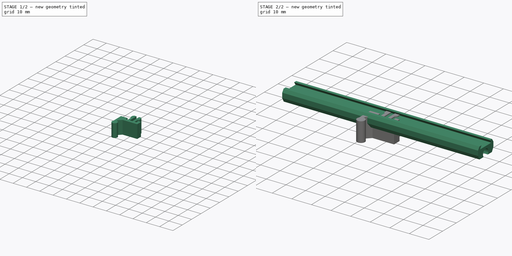
[diagram: build sequence overview — one tinted view per stage of 2, left to right]
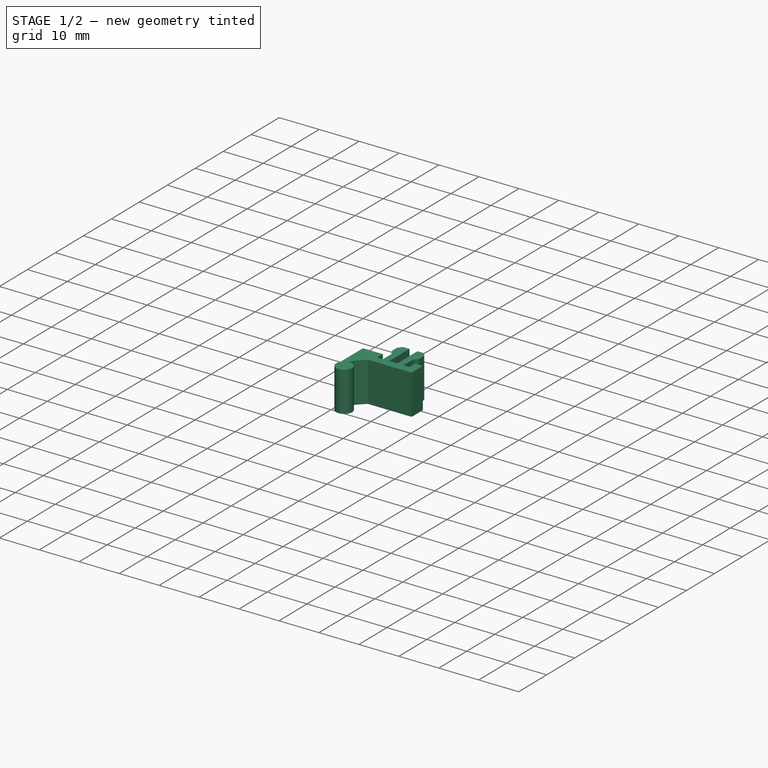
[diagram: stage 1 of 2 — iso view after this stage's code; geometry added in this stage tinted green]
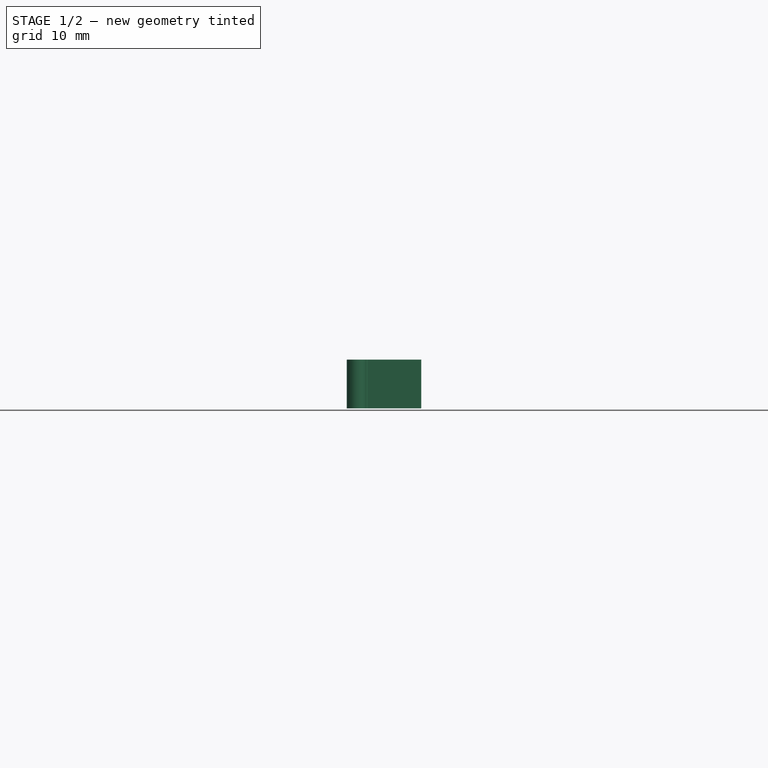
[diagram: stage 1 of 2 — front view after this stage's code; geometry added in this stage tinted green]
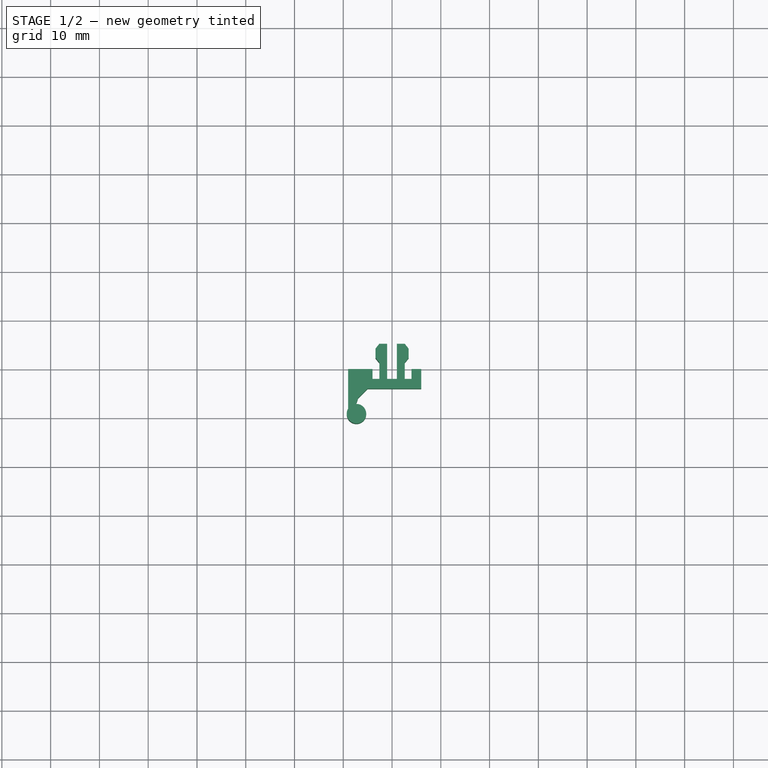
[diagram: stage 1 of 2 — top view after this stage's code; geometry added in this stage tinted green]
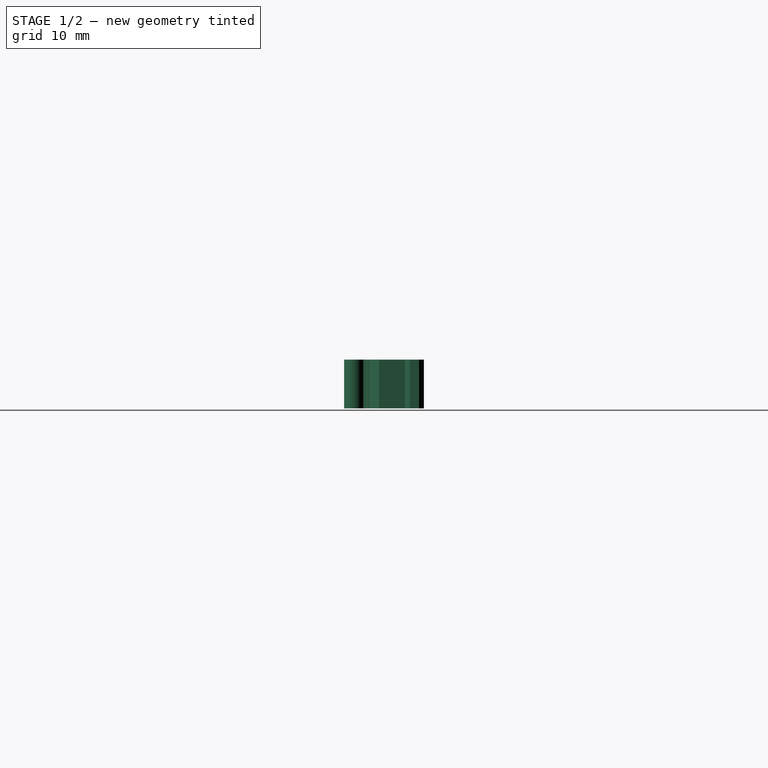
[diagram: stage 1 of 2 — right view after this stage's code; geometry added in this stage tinted green]
FCSTD DOCUMENT  (FreeCAD 0.20R30820 (Git))
Label: 8mm
License: Creative Commons Attribution
LicenseURL: http://creativecommons.org/licenses/by/4.0/
objects: Sketcher::SketchObject×2, PartDesign::Pad×2, PartDesign::Body×2, App::Part×1
note: 10 computed .brp shape members not serialized (recipe doc carries the construction recipe); baked Part::Feature solids carry a one-line shape summary decoded from their .brp

FEATURE [PartDesign::Body] Body  label="Strip"
  AutoGroupSolids = false
  ExportMode = 0
  Group = -> [Sketch,Pad]
  Origin = -> Origin001
  Tip = -> Pad
  TreeRank = 14
  _ExportChildren = -> [Pad]
  _GroupVersion = 1
FEATURE [Sketcher::SketchObject] Sketch001
  FullyConstrained = true
  MapMode = 5
  Support = -> [XY_Plane001]
  TreeRank = 11
  sketch-geometry (27):
    g0: LineSegment StartX=-9 StartY=0 StartZ=0 EndX=-9 EndY=-8.09939 EndZ=0
    g1: LineSegment StartX=-7.38306 StartY=-7.15468 StartZ=0 EndX=-7 EndY=-6.10222 EndZ=0
    g2: LineSegment StartX=-7 StartY=-6.10222 StartZ=0 EndX=-7 EndY=-6.00222 EndZ=0
    g3: LineSegment StartX=-7 StartY=-6.00222 StartZ=0 EndX=-5 EndY=-4 EndZ=0
    g4: LineSegment StartX=-5 StartY=-4 StartZ=0 EndX=6 EndY=-4 EndZ=0
    g5: LineSegment StartX=6 StartY=-4 StartZ=0 EndX=6 EndY=0 EndZ=0
    g6: LineSegment StartX=6 StartY=0 StartZ=0 EndX=4 EndY=0 EndZ=0
    g7: LineSegment StartX=4 StartY=0 StartZ=0 EndX=4 EndY=-2 EndZ=0
    g8: LineSegment StartX=4 StartY=-2 StartZ=0 EndX=2.6 EndY=-2 EndZ=0
    g9: LineSegment StartX=2.6 StartY=-2 StartZ=0 EndX=2.6 EndY=1.3 EndZ=0
    g10: LineSegment StartX=2.6 StartY=1.3 StartZ=0 EndX=3.4 EndY=2.2992 EndZ=0
    g11: LineSegment StartX=3.4 StartY=2.2992 StartZ=0 EndX=3.4 EndY=4.1992 EndZ=0
    g12: LineSegment StartX=3.4 StartY=4.1992 StartZ=0 EndX=2.6 EndY=5.2 EndZ=0
    g13: LineSegment StartX=2.6 StartY=5.2 StartZ=0 EndX=1 EndY=5.2 EndZ=0
    g14: LineSegment StartX=1 StartY=5.2 StartZ=0 EndX=1 EndY=-2 EndZ=0
    g15: LineSegment StartX=1 StartY=-2 StartZ=0 EndX=-1 EndY=-2 EndZ=0
    g16: LineSegment StartX=-1 StartY=-2 StartZ=0 EndX=-1 EndY=5.2 EndZ=0
    g17: LineSegment StartX=-1 StartY=5.2 StartZ=0 EndX=-2.6 EndY=5.2 EndZ=0
    g18: LineSegment StartX=-2.6 StartY=5.2 StartZ=0 EndX=-3.4 EndY=4.1992 EndZ=0
    g19: LineSegment StartX=-3.4 StartY=4.1992 StartZ=0 EndX=-3.4 EndY=2.2992 EndZ=0
    g20: LineSegment StartX=-3.4 StartY=2.2992 StartZ=0 EndX=-2.6 EndY=1.3 EndZ=0
    g21: LineSegment StartX=-2.6 StartY=1.3 StartZ=0 EndX=-2.6 EndY=-2 EndZ=0
    g22: LineSegment StartX=-2.6 StartY=-2 StartZ=0 EndX=-4 EndY=-2 EndZ=0
    g23: LineSegment StartX=-4 StartY=-2 StartZ=0 EndX=-4 EndY=0 EndZ=0
    g24: LineSegment StartX=-4 StartY=0 StartZ=0 EndX=-9 EndY=0 EndZ=0
    g25: ArcOfCircle CenterX=-7.3 CenterY=-9.15295 CenterZ=0 NormalX=0 NormalY=0 NormalZ=1 AngleXU=0 Radius=2 StartAngle=2.58678 EndAngle=7.89552
    g26: GeomPoint [constr] X=-9 Y=-6.00222 Z=0
  constraints (78):
    c: PointOnObject(g0,g-1)
    c: Vertical(g0)
    c: Coincident(g1,g2)
    c: Vertical(g2)
    c: Coincident(g2,g3)
    c: Coincident(g3,g4)
    c: Horizontal(g4)
    c: Coincident(g4,g5)
    c: PointOnObject(g5,g-1)
    c: Vertical(g5)
    c: Coincident(g5,g6)
    c: PointOnObject(g6,g-1)
    c: Coincident(g6,g7)
    c: Vertical(g7)
    c: Coincident(g7,g8)
    c: Horizontal(g8)
    c: Coincident(g8,g9)
    c: Vertical(g9)
    c: Coincident(g9,g10)
    c: Coincident(g10,g11)
    c: Vertical(g11)
    c: Coincident(g11,g12)
    c: Coincident(g12,g13)
    c: Horizontal(g13)
    c: Coincident(g13,g14)
    c: Vertical(g14)
    c: Coincident(g14,g15)
    c: Horizontal(g15)
    c: Coincident(g15,g16)
    c: Vertical(g16)
    c: Coincident(g16,g17)
    c: Horizontal(g17)
    c: Coincident(g17,g18)
    c: Coincident(g18,g19)
    c: Vertical(g19)
    c: Coincident(g19,g20)
    c: Coincident(g20,g21)
    c: Vertical(g21)
    c: Coincident(g21,g22)
    c: Horizontal(g22)
    c: Coincident(g22,g23)
    c: PointOnObject(g23,g-1)
    c: Coincident(g23,g24)
    c: Coincident(g24,g0)
    c: Vertical(g23)
    c: Equal(g11,g19)
    c: Equal(g17,g13)
    c: DistanceX(g17,g17) = 1.6
    c: Symmetric(g16,g13,g-2)
    c: Symmetric(g18,g11,g-2)
    c: DistanceX(g16,g13) = 2
    c: Symmetric(g20,g9,g-2)
    c: DistanceY(g17) = 5.2
    c: DistanceY(g20) = 1.3
    c: Vertical(g17,g20)
    c: Distance(g20) = 1.28
    c: DistanceX(g18) = -3.4
    c: DistanceY(g19,g19) = 1.9
    c: DistanceY(g21) = -2
    c: Horizontal(g21,g15)
    c: Horizontal(g15,g8)
    c: DistanceX(g22,g22) = 1.4
    c: Equal(g22,g8)
    c: DistanceX(g6,g6) = 2
    c: DistanceY(g5,g5) = 4
    c: DistanceX(g24,g24) = 5
    c: DistanceX(g4,g4) = 11
    c: DistanceX(g2) = -7
    c: Angle(g2,g1) = 2.79253
    c: Radius(g25) = 2
    c: DistanceX(g25) = -7.3
    c: Coincident(g0,g25)
    c: Coincident(g1,g25)
    c: Distance(g3) = 2.83
    c: PointOnObject(g26,g0)
    c: Horizontal(g2,g26)
    c: Distance(g1) = 1.12
    c: DistanceY(g2,g2) = 0.1
FEATURE [PartDesign::Pad] Pad001
  AddSubType = 0
  AlongSketchNormal = false
  CheckUpToFaceLimits = true
  ClaimChildren = false
  Direction = (0,0,1)
  Fit = 0
  FitJoin = 0
  InnerFit = 0
  InnerFitJoin = 0
  InnerTaperAngle = 0
  InnerTaperAngleRev = 0
  Length = 10
  Length2 = 100
  Linearize = true
  Midplane = true
  NewSolid = false
  Profile = -> Sketch001
  Suppress = false
  TreeRank = 13
  Type = 0
  _ProfileBasedVersion = 1
FEATURE [PartDesign::Body] Body001  label="Clip"
  AutoGroupSolids = false
  ExportMode = 0
  Group = -> [Sketch001,Pad001]
  Origin = -> Origin002
  Placement = pos=(1.6e-15,-7.3,-7.8) rot=(0.57735,-0.57735,0.57735;4.18879rad)
  Tip = -> Pad001
  TreeRank = 18
  _ExportChildren = -> [Pad001]
  _GroupVersion = 1
FEATURE [App::Part] Part
  ExportMode = 1
  Group = -> [Body,Body001]
  Origin = -> Origin
  TreeRank = 17
  _ExportChildren = -> [Body,Body001]
  _GroupVersion = 1
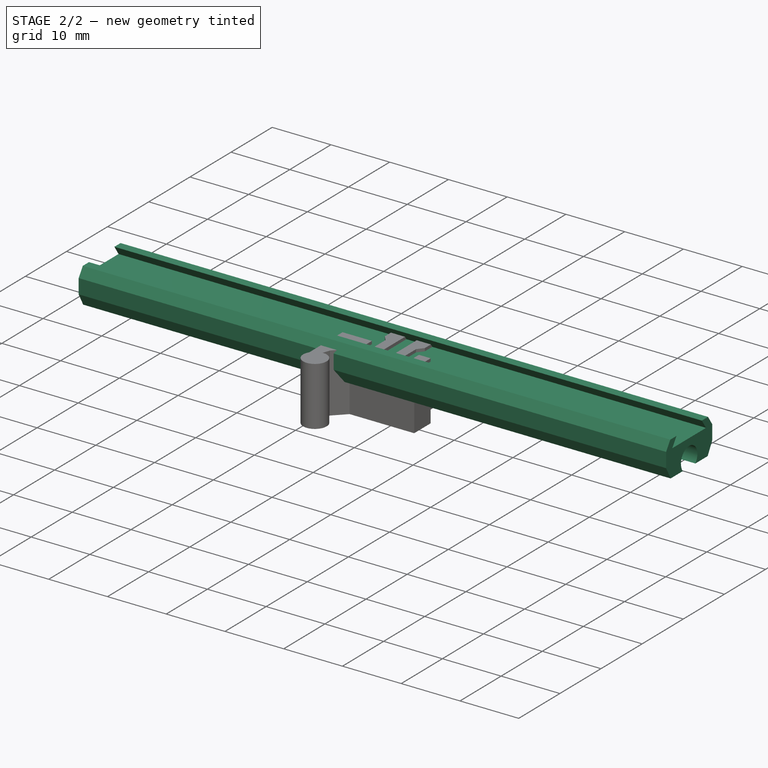
[diagram: stage 2 of 2 — iso view after this stage's code; geometry added in this stage tinted green]
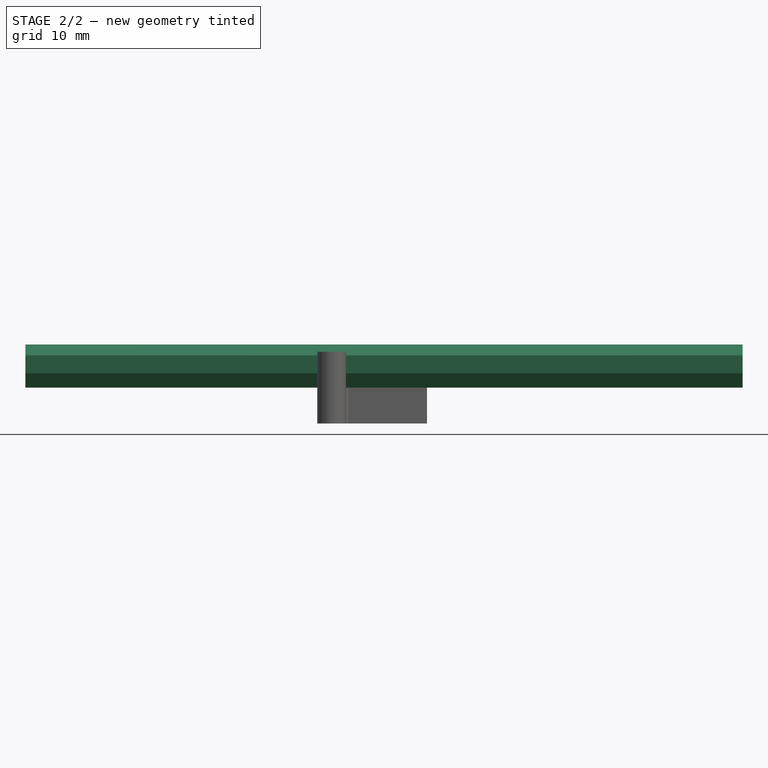
[diagram: stage 2 of 2 — front view after this stage's code; geometry added in this stage tinted green]
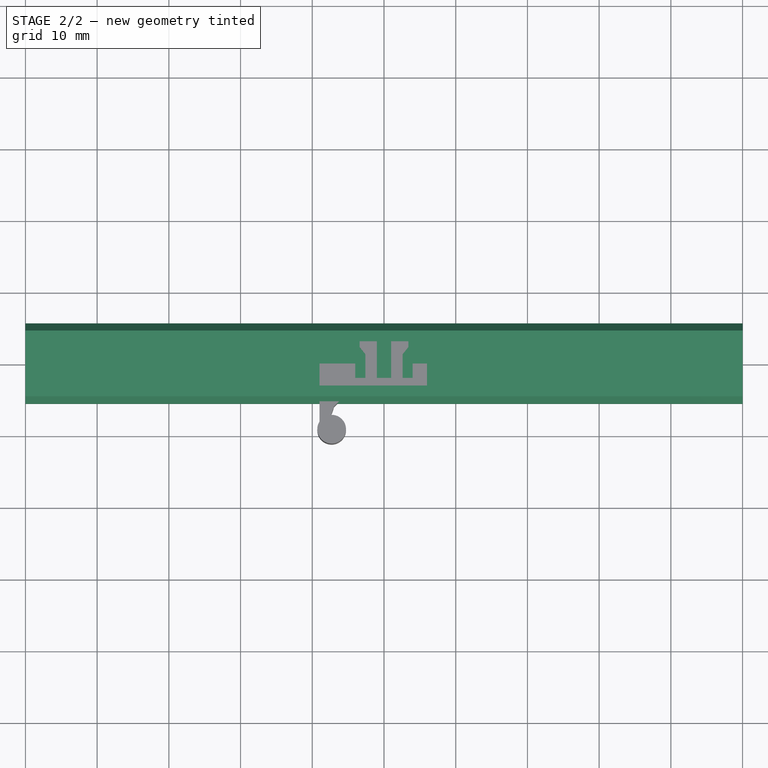
[diagram: stage 2 of 2 — top view after this stage's code; geometry added in this stage tinted green]
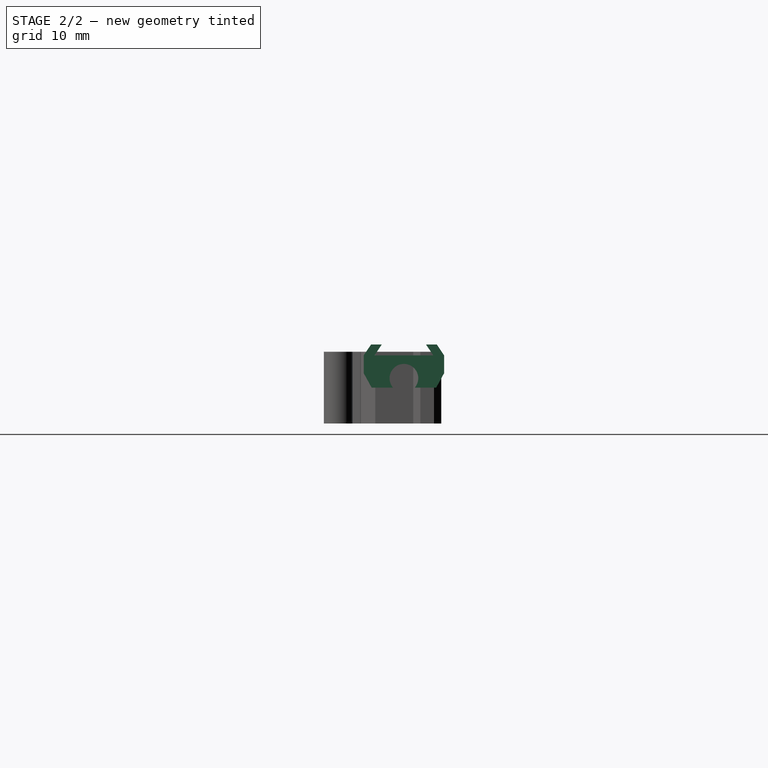
[diagram: stage 2 of 2 — right view after this stage's code; geometry added in this stage tinted green]
FEATURE [Sketcher::SketchObject] Sketch
  FullyConstrained = true
  MapMode = 5
  Placement = pos=(0,0,0) rot=(0.57735,0.57735,0.57735;2.0944rad)
  Support = -> [YZ_Plane]
  TreeRank = 15
  sketch-geometry (14):
    g0: ArcOfCircle CenterX=0 CenterY=1.3 CenterZ=0 NormalX=0 NormalY=0 NormalZ=1 AngleXU=0 Radius=2 StartAngle=5.5756 EndAngle=10.1324
    g1: LineSegment StartX=-4.1 StartY=4.5 StartZ=0 EndX=4.1 EndY=4.5 EndZ=0
    g2: LineSegment StartX=-4.1 StartY=4.5 StartZ=0 EndX=-3.08824 EndY=6 EndZ=0
    g3: LineSegment StartX=4.1 StartY=4.5 StartZ=0 EndX=3.08824 EndY=6 EndZ=0
    g4: LineSegment StartX=-3.08824 StartY=6 StartZ=0 EndX=-4.58824 EndY=6 EndZ=0
    g5: LineSegment StartX=-4.58824 StartY=6 StartZ=0 EndX=-5.6 EndY=4.5 EndZ=0
    g6: LineSegment StartX=-5.6 StartY=4.5 StartZ=0 EndX=-5.6 EndY=2 EndZ=0
    g7: LineSegment StartX=-5.6 StartY=2 StartZ=0 EndX=-4.5 EndY=0 EndZ=0
    g8: LineSegment StartX=-4.5 StartY=0 StartZ=0 EndX=-1.51987 EndY=3.09e-14 EndZ=0
    g9: LineSegment StartX=3.08824 StartY=6 StartZ=0 EndX=4.58824 EndY=6 EndZ=0
    g10: LineSegment StartX=4.58824 StartY=6 StartZ=0 EndX=5.6 EndY=4.5 EndZ=0
    g11: LineSegment StartX=5.6 StartY=4.5 StartZ=0 EndX=5.6 EndY=2 EndZ=0
    g12: LineSegment StartX=5.6 StartY=2 StartZ=0 EndX=4.5 EndY=0 EndZ=0
    g13: LineSegment StartX=4.5 StartY=0 StartZ=0 EndX=1.51987 EndY=1.78e-14 EndZ=0
  constraints (41):
    c: PointOnObject(g0,g-2)
    c: Radius(g0) = 2
    c: DistanceY(g0) = 1.3
    c: Symmetric(g1,g1,g-2)
    c: DistanceX(g1,g1) = 8.2
    c: Coincident(g2,g1)
    c: Coincident(g3,g1)
    c: Coincident(g2,g4)
    c: Angle(g1,g2) = 0.977384
    c: Angle(g3,g1) = 0.977384
    c: DistanceY(g1) = 4.5
    c: DistanceY(g1,g2) = 1.5
    c: Equal(g3,g2)
    c: Horizontal(g4)
    c: DistanceX(g4,g4) = 1.5
    c: Coincident(g4,g5)
    c: Coincident(g5,g6)
    c: Vertical(g6)
    c: Coincident(g6,g7)
    c: PointOnObject(g7,g-1)
    c: Coincident(g7,g8)
    c: Equal(g5,g2)
    c: Horizontal(g5,g1)
    c: DistanceY(g6,g6) = 2.5
    c: Coincident(g3,g9)
    c: Horizontal(g9)
    c: Coincident(g9,g10)
    c: Coincident(g10,g11)
    c: Coincident(g11,g12)
    c: Coincident(g12,g13)
    c: Vertical(g11)
    c: Parallel(g3,g10)
    c: Equal(g9,g4)
    c: Equal(g11,g6)
    c: Symmetric(g7,g12,g-2)
    c: Coincident(g0,g8)
    c: Coincident(g0,g13)
    c: DistanceX(g7,g-1) = 4.5
    c: Equal(g8,g13)
    c: PointOnObject(g0,g-1)
    c: Equal(g5,g10)
FEATURE [PartDesign::Pad] Pad
  AddSubType = 0
  AlongSketchNormal = false
  CheckUpToFaceLimits = true
  ClaimChildren = false
  Direction = (1,-2e-16,3e-16)
  Fit = 0
  FitJoin = 0
  InnerFit = 0
  InnerFitJoin = 0
  InnerTaperAngle = 0
  InnerTaperAngleRev = 0
  Length = 100
  Length2 = 100
  Linearize = true
  Midplane = true
  NewSolid = false
  Placement = pos=(0,0,0) rot=(0.57735,0.57735,0.57735;2.0944rad)
  Profile = -> Sketch
  Suppress = false
  TreeRank = 16
  Type = 0
  _ProfileBasedVersion = 1
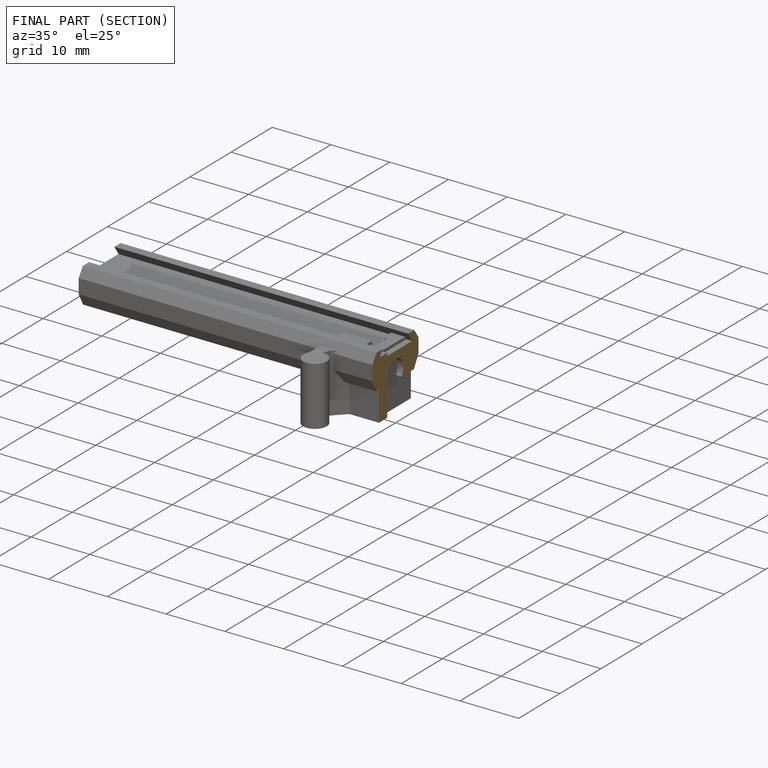
[diagram: finished part — half-section view (interior)]
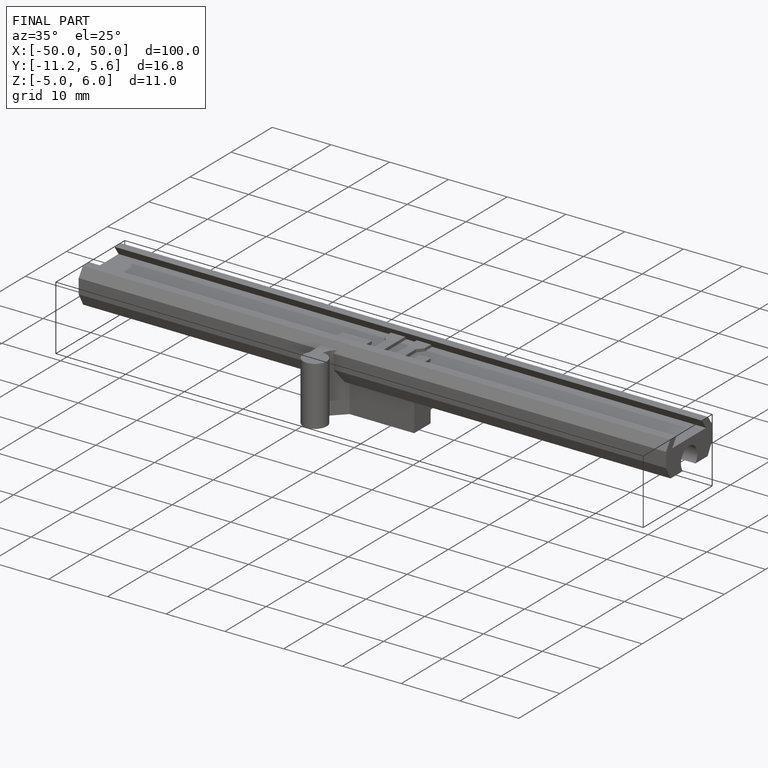
[diagram: finished part — iso view with bounding-box wireframe]
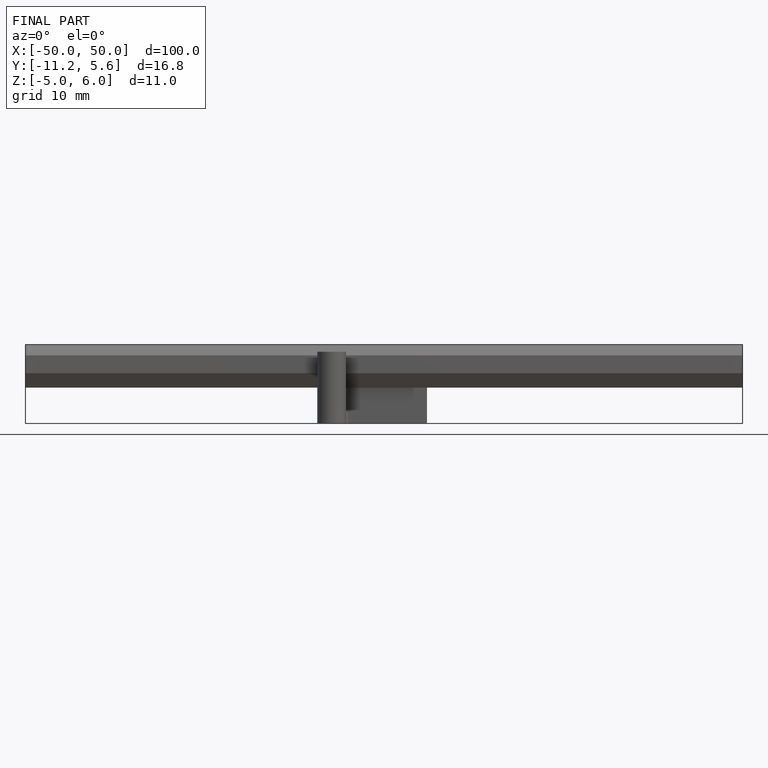
[diagram: finished part — front view with bounding-box wireframe]
